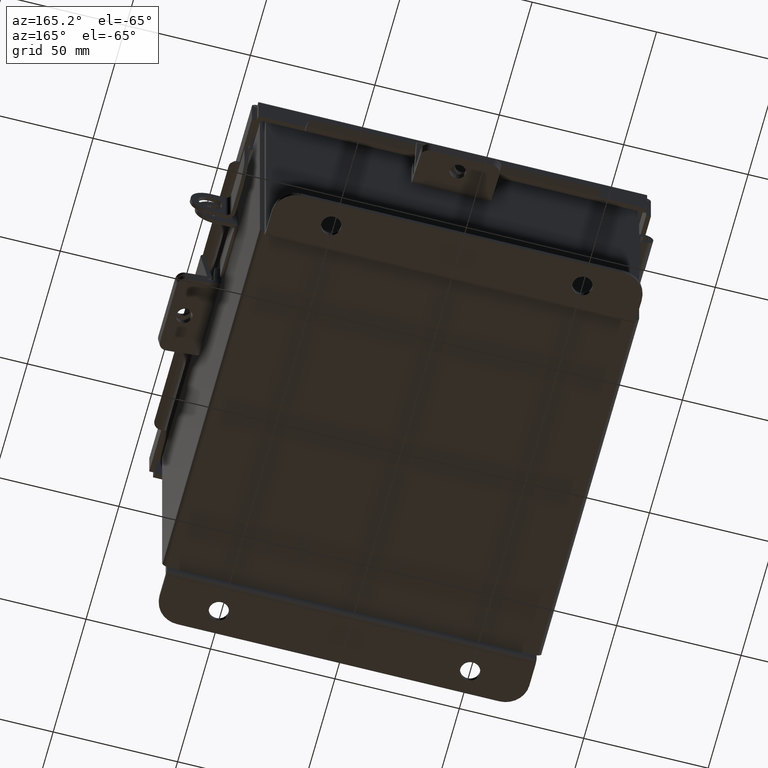
[diagram: clean part render]
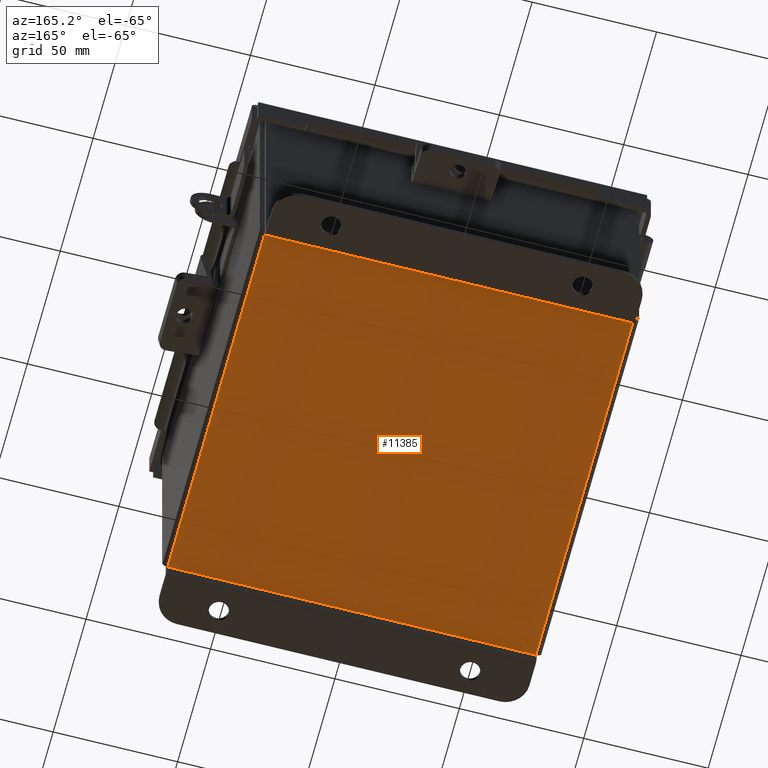
[diagram: same view with one face highlighted and labeled with its STEP entity id]
A machine part, auxiliary view. The second image highlights one B-rep face of the part: STEP entity #11385.
In plain terms, the highlighted planar face has unit normal (0, 0, -1).
Its self-contained STEP definition (entity closure, byte-faithful):
#770 = EDGE_CURVE ( 'NONE', #9697, #3584, #7501, .T. ) ;
#803 = VECTOR ( 'NONE', #12962, 39.37007874015748100 ) ;
#872 = CARTESIAN_POINT ( 'NONE',  ( -2.999999999999999100, -2.925299999999999600, -0.07470000000000000300 ) ) ;
#2274 = LINE ( 'NONE', #13216, #8125 ) ;
#2642 = ORIENTED_EDGE ( 'NONE', *, *, #9807, .F. ) ;
#3584 = VERTEX_POINT ( 'NONE', #13878 ) ;
#3714 = LINE ( 'NONE', #872, #803 ) ;
#4134 = FACE_OUTER_BOUND ( 'NONE', #8464, .T. ) ;
#4271 = CARTESIAN_POINT ( 'NONE',  ( -2.912299999999998800, 2.925300000000000500, -0.07470000000000000300 ) ) ;
#4532 = EDGE_CURVE ( 'NONE', #12079, #11051, #10891, .T. ) ;
#4543 = VECTOR ( 'NONE', #13104, 39.37007874015748100 ) ;
#4585 = CARTESIAN_POINT ( 'NONE',  ( -2.912299999999998800, -2.925299999999999600, -0.07469999999999943400 ) ) ;
#5265 = EDGE_CURVE ( 'NONE', #9697, #11051, #2274, .T. ) ;
#5463 = PLANE ( 'NONE',  #13537 ) ;
#6485 = CARTESIAN_POINT ( 'NONE',  ( 2.912300000000001000, 2.925300000000000500, -0.07469999999999994700 ) ) ;
#6575 = DIRECTION ( 'NONE',  ( -1.000000000000000000, 0.0000000000000000000, -0.0000000000000000000 ) ) ;
#6931 = ORIENTED_EDGE ( 'NONE', *, *, #5265, .F. ) ;
#7335 = ORIENTED_EDGE ( 'NONE', *, *, #4532, .T. ) ;
#7501 = LINE ( 'NONE', #6485, #4543 ) ;
#7997 = CARTESIAN_POINT ( 'NONE',  ( -2.912299999999998800, -2.925299999999999100, -0.07469999999999943400 ) ) ;
#8125 = VECTOR ( 'NONE', #11007, 39.37007874015748100 ) ;
#8464 = EDGE_LOOP ( 'NONE', ( #6931, #12944, #2642, #7335 ) ) ;
#9697 = VERTEX_POINT ( 'NONE', #13877 ) ;
#9807 = EDGE_CURVE ( 'NONE', #12079, #3584, #3714, .T. ) ;
#10329 = DIRECTION ( 'NONE',  ( -0.0000000000000000000, 1.000000000000000000, -8.208677865577646300E-017 ) ) ;
#10891 = LINE ( 'NONE', #4585, #12419 ) ;
#10939 = CARTESIAN_POINT ( 'NONE',  ( 0.0000000000000000000, 0.0000000000000000000, -0.07470000000000000300 ) ) ;
#11007 = DIRECTION ( 'NONE',  ( -1.000000000000000000, -0.0000000000000000000, -0.0000000000000000000 ) ) ;
#11051 = VERTEX_POINT ( 'NONE', #4271 ) ;
#11385 = ADVANCED_FACE ( 'NONE', ( #4134 ), #5463, .T. ) ;
#12079 = VERTEX_POINT ( 'NONE', #7997 ) ;
#12419 = VECTOR ( 'NONE', #10329, 39.37007874015748100 ) ;
#12944 = ORIENTED_EDGE ( 'NONE', *, *, #770, .T. ) ;
#12962 = DIRECTION ( 'NONE',  ( 1.000000000000000000, 0.0000000000000000000, 0.0000000000000000000 ) ) ;
#13104 = DIRECTION ( 'NONE',  ( -0.0000000000000000000, -1.000000000000000000, -0.0000000000000000000 ) ) ;
#13144 = DIRECTION ( 'NONE',  ( 0.0000000000000000000, 0.0000000000000000000, -1.000000000000000000 ) ) ;
#13216 = CARTESIAN_POINT ( 'NONE',  ( -2.999999999999999100, 2.925300000000000500, -0.07470000000000000300 ) ) ;
#13537 = AXIS2_PLACEMENT_3D ( 'NONE', #10939, #13144, #6575 ) ;
#13877 = CARTESIAN_POINT ( 'NONE',  ( 2.912300000000001000, 2.925300000000000000, -0.07469999999999994700 ) ) ;
#13878 = CARTESIAN_POINT ( 'NONE',  ( 2.912300000000001000, -2.925299999999999100, -0.07470000000000000300 ) ) ;